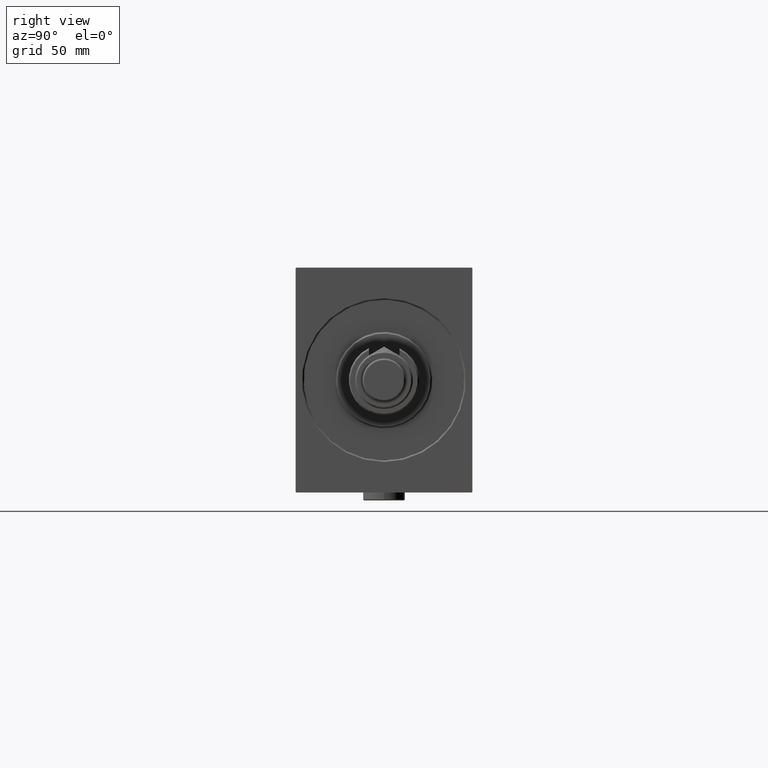
[diagram: clean part render]
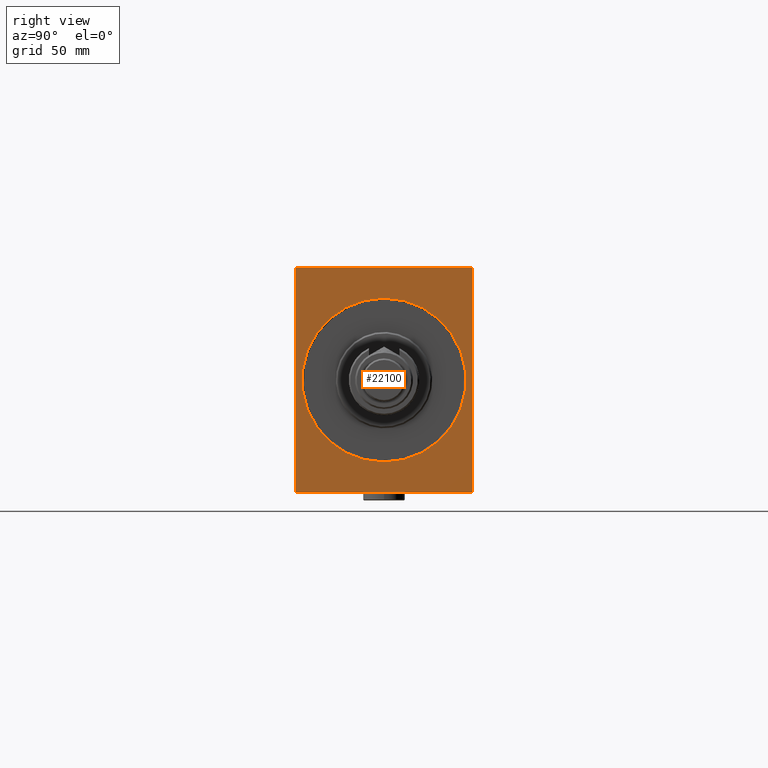
[diagram: same view with one face highlighted and labeled with its STEP entity id]
A machine part, right view. The second image highlights one B-rep face of the part: STEP entity #22100.
In plain terms, the highlighted planar face has unit normal (-1, -0, 0).
Its self-contained STEP definition (entity closure, byte-faithful):
#1127 = VECTOR ( 'NONE', #24782, 1000.000000000000000 ) ;
#1158 = CIRCLE ( 'NONE', #23033, 50.99999999999993605 ) ;
#2206 = EDGE_CURVE ( 'NONE', #30392, #20299, #44844, .T. ) ;
#2817 = EDGE_CURVE ( 'NONE', #22430, #32393, #34233, .T. ) ;
#2845 = DIRECTION ( 'NONE',  ( 0.000000000000000000, 1.000000000000000000, 0.000000000000000000 ) ) ;
#3182 = VERTEX_POINT ( 'NONE', #30415 ) ;
#4175 = EDGE_LOOP ( 'NONE', ( #19050, #33645 ) ) ;
#4186 = VECTOR ( 'NONE', #29793, 1000.000000000000114 ) ;
#4297 = ORIENTED_EDGE ( 'NONE', *, *, #19856, .F. ) ;
#4923 = AXIS2_PLACEMENT_3D ( 'NONE', #29023, #43394, #11574 ) ;
#5319 = CARTESIAN_POINT ( 'NONE',  ( 0.000000000000000000, 55.00000000000002132, -69.69999999999998863 ) ) ;
#5408 = VERTEX_POINT ( 'NONE', #12805 ) ;
#7230 = LINE ( 'NONE', #18306, #41924 ) ;
#7529 = DIRECTION ( 'NONE',  ( 0.000000000000000000, -1.982541115402065110E-16, 1.000000000000000000 ) ) ;
#7750 = CARTESIAN_POINT ( 'NONE',  ( 0.000000000000000000, 55.00000000000002132, -70.00000000000000000 ) ) ;
#7823 = DIRECTION ( 'NONE',  ( 1.000000000000000000, 0.000000000000000000, 0.000000000000000000 ) ) ;
#8245 = CARTESIAN_POINT ( 'NONE',  ( 0.000000000000000000, -54.99999999999999289, 69.70000000000001705 ) ) ;
#8927 = CARTESIAN_POINT ( 'NONE',  ( 0.000000000000000000, 0.000000000000000000, 0.000000000000000000 ) ) ;
#9245 = CARTESIAN_POINT ( 'NONE',  ( 0.000000000000000000, 54.99999999999999289, 69.70000000000001705 ) ) ;
#10163 = ORIENTED_EDGE ( 'NONE', *, *, #40343, .T. ) ;
#11221 = ORIENTED_EDGE ( 'NONE', *, *, #15285, .T. ) ;
#11281 = CARTESIAN_POINT ( 'NONE',  ( 0.000000000000000000, -54.99999999999999289, -69.70000000000001705 ) ) ;
#11329 = DIRECTION ( 'NONE',  ( -0.000000000000000000, 0.7071067811865474617, 0.7071067811865474617 ) ) ;
#11574 = DIRECTION ( 'NONE',  ( 0.000000000000000000, 0.000000000000000000, -1.000000000000000000 ) ) ;
#12112 = CARTESIAN_POINT ( 'NONE',  ( 0.000000000000000000, 55.00000000000002132, -69.69999999999998863 ) ) ;
#12391 = CARTESIAN_POINT ( 'NONE',  ( 0.000000000000000000, -54.99999999999999289, -70.00000000000000000 ) ) ;
#12805 = CARTESIAN_POINT ( 'NONE',  ( 0.000000000000000000, -54.69999999999999574, 70.00000000000000000 ) ) ;
#13033 = CARTESIAN_POINT ( 'NONE',  ( 0.000000000000000000, 6.245698675651492556E-15, -50.99999999999993605 ) ) ;
#13172 = EDGE_LOOP ( 'NONE', ( #22172, #10163, #4297, #16596, #42992, #21594, #30917, #11221 ) ) ;
#14359 = LINE ( 'NONE', #7750, #42209 ) ;
#14615 = LINE ( 'NONE', #8245, #39067 ) ;
#14627 = LINE ( 'NONE', #39862, #27496 ) ;
#15285 = EDGE_CURVE ( 'NONE', #40144, #5408, #14615, .T. ) ;
#15600 = PLANE ( 'NONE',  #22714 ) ;
#16596 = ORIENTED_EDGE ( 'NONE', *, *, #2817, .T. ) ;
#16841 = CARTESIAN_POINT ( 'NONE',  ( 0.000000000000000000, 54.69999999999999574, -70.00000000000000000 ) ) ;
#18306 = CARTESIAN_POINT ( 'NONE',  ( 0.000000000000000000, 54.69999999999999574, 70.00000000000000000 ) ) ;
#18394 = DIRECTION ( 'NONE',  ( 0.000000000000000000, 0.000000000000000000, -1.000000000000000000 ) ) ;
#18518 = VERTEX_POINT ( 'NONE', #31158 ) ;
#18853 = DIRECTION ( 'NONE',  ( 0.000000000000000000, 0.000000000000000000, -1.000000000000000000 ) ) ;
#19050 = ORIENTED_EDGE ( 'NONE', *, *, #37901, .T. ) ;
#19319 = VERTEX_POINT ( 'NONE', #9245 ) ;
#19856 = EDGE_CURVE ( 'NONE', #22430, #19319, #14359, .T. ) ;
#20299 = VERTEX_POINT ( 'NONE', #22788 ) ;
#20440 = VECTOR ( 'NONE', #27589, 1000.000000000000114 ) ;
#21594 = ORIENTED_EDGE ( 'NONE', *, *, #22994, .T. ) ;
#22100 = ADVANCED_FACE ( 'NONE', ( #40125, #22905 ), #15600, .F. ) ;
#22172 = ORIENTED_EDGE ( 'NONE', *, *, #36010, .F. ) ;
#22430 = VERTEX_POINT ( 'NONE', #5319 ) ;
#22714 = AXIS2_PLACEMENT_3D ( 'NONE', #37273, #7823, #43660 ) ;
#22788 = CARTESIAN_POINT ( 'NONE',  ( 0.000000000000000000, 0.000000000000000000, 50.99999999999993605 ) ) ;
#22905 = FACE_OUTER_BOUND ( 'NONE', #13172, .T. ) ;
#22994 = EDGE_CURVE ( 'NONE', #3182, #44833, #31604, .T. ) ;
#23033 = AXIS2_PLACEMENT_3D ( 'NONE', #8927, #26394, #18853 ) ;
#24782 = DIRECTION ( 'NONE',  ( 0.000000000000000000, -1.000000000000000000, 0.000000000000000000 ) ) ;
#25011 = LINE ( 'NONE', #42685, #1127 ) ;
#26394 = DIRECTION ( 'NONE',  ( 1.000000000000000000, 0.000000000000000000, 0.000000000000000000 ) ) ;
#27496 = VECTOR ( 'NONE', #18394, 1000.000000000000000 ) ;
#27589 = DIRECTION ( 'NONE',  ( -0.000000000000000000, -0.7071067811865474617, 0.7071067811865474617 ) ) ;
#28672 = CARTESIAN_POINT ( 'NONE',  ( 0.000000000000000000, -54.99999999999999289, 69.70000000000001705 ) ) ;
#29023 = CARTESIAN_POINT ( 'NONE',  ( 0.000000000000000000, 0.000000000000000000, 0.000000000000000000 ) ) ;
#29793 = DIRECTION ( 'NONE',  ( 0.000000000000000000, -0.7071067811865474617, -0.7071067811865474617 ) ) ;
#30392 = VERTEX_POINT ( 'NONE', #13033 ) ;
#30415 = CARTESIAN_POINT ( 'NONE',  ( 0.000000000000000000, -54.69999999999999574, -70.00000000000000000 ) ) ;
#30917 = ORIENTED_EDGE ( 'NONE', *, *, #36859, .F. ) ;
#31158 = CARTESIAN_POINT ( 'NONE',  ( 0.000000000000000000, 54.69999999999999574, 70.00000000000000000 ) ) ;
#31604 = LINE ( 'NONE', #42437, #20440 ) ;
#32393 = VERTEX_POINT ( 'NONE', #16841 ) ;
#33645 = ORIENTED_EDGE ( 'NONE', *, *, #2206, .T. ) ;
#34233 = LINE ( 'NONE', #12112, #4186 ) ;
#35155 = LINE ( 'NONE', #12391, #38321 ) ;
#36010 = EDGE_CURVE ( 'NONE', #18518, #5408, #25011, .T. ) ;
#36218 = DIRECTION ( 'NONE',  ( -0.000000000000000000, 0.7071067811865474617, -0.7071067811865474617 ) ) ;
#36859 = EDGE_CURVE ( 'NONE', #40144, #44833, #14627, .T. ) ;
#37273 = CARTESIAN_POINT ( 'NONE',  ( 0.000000000000000000, 0.000000000000000000, 0.000000000000000000 ) ) ;
#37901 = EDGE_CURVE ( 'NONE', #20299, #30392, #1158, .T. ) ;
#38321 = VECTOR ( 'NONE', #2845, 1000.000000000000000 ) ;
#39067 = VECTOR ( 'NONE', #11329, 1000.000000000000114 ) ;
#39862 = CARTESIAN_POINT ( 'NONE',  ( 0.000000000000000000, -54.99999999999999289, 70.00000000000000000 ) ) ;
#40125 = FACE_BOUND ( 'NONE', #4175, .T. ) ;
#40144 = VERTEX_POINT ( 'NONE', #28672 ) ;
#40343 = EDGE_CURVE ( 'NONE', #18518, #19319, #7230, .T. ) ;
#41924 = VECTOR ( 'NONE', #36218, 1000.000000000000114 ) ;
#42209 = VECTOR ( 'NONE', #7529, 1000.000000000000000 ) ;
#42437 = CARTESIAN_POINT ( 'NONE',  ( 0.000000000000000000, -54.69999999999999574, -70.00000000000000000 ) ) ;
#42685 = CARTESIAN_POINT ( 'NONE',  ( 0.000000000000000000, 54.99999999999999289, 70.00000000000000000 ) ) ;
#42992 = ORIENTED_EDGE ( 'NONE', *, *, #45964, .F. ) ;
#43394 = DIRECTION ( 'NONE',  ( 1.000000000000000000, 0.000000000000000000, 0.000000000000000000 ) ) ;
#43660 = DIRECTION ( 'NONE',  ( 0.000000000000000000, 0.000000000000000000, -1.000000000000000000 ) ) ;
#44833 = VERTEX_POINT ( 'NONE', #11281 ) ;
#44844 = CIRCLE ( 'NONE', #4923, 50.99999999999993605 ) ;
#45964 = EDGE_CURVE ( 'NONE', #3182, #32393, #35155, .T. ) ;